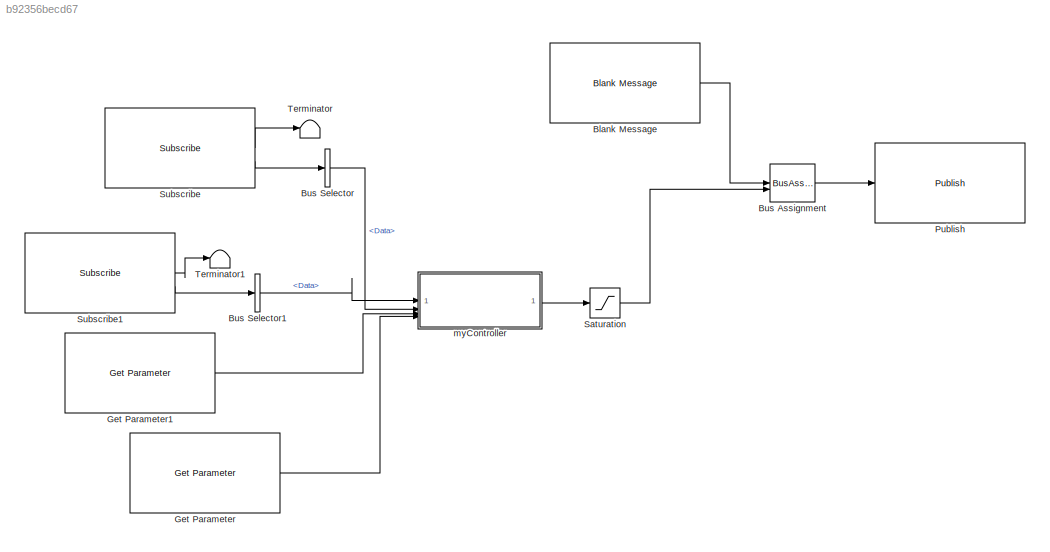
MODEL slx_b92356becd67
KIND model
CONFIG AbsTol = auto
CONFIG EnableMultiTasking = off
CONFIG FixedStep = 0.05
CONFIG MaxStep = auto
CONFIG MinStep = auto
CONFIG RelTol = 1e-3
CONFIG SampleTimeConstraint = Unconstrained
CONFIG SolverName = FixedStepAuto
CONFIG StartTime = 0.0
CONFIG StopTime = inf
BLOCK [Reference] Blank Message  REF=robotlib/Blank Message
  SourceBlock = robotlib/Blank Message
  SourceType = ROS Blank Message
BLOCK [BusAssignment] Bus Assignment
  AssignedSignals = Data
BLOCK [BusSelector] Bus Selector
  OutputSignals = Data
BLOCK [BusSelector] Bus Selector1
  OutputSignals = Data
BLOCK [Reference] Get Parameter  REF=robotlib/Get Parameter
  SourceBlock = robotlib/Get Parameter
  SourceType = ROS Get Parameter
BLOCK [Reference] Get Parameter1  REF=robotlib/Get Parameter
  SourceBlock = robotlib/Get Parameter
  SourceType = ROS Get Parameter
BLOCK [Reference] Publish  REF=robotlib/Publish
  SourceBlock = robotlib/Publish
  SourceType = ROS Publish
BLOCK [Saturate] Saturation
  LowerLimit = -3.0
  UpperLimit = 1.5
BLOCK [Reference] Subscribe  REF=robotlib/Subscribe
  SourceBlock = robotlib/Subscribe
  SourceType = ROS Subscribe
BLOCK [Reference] Subscribe1  REF=robotlib/Subscribe
  SourceBlock = robotlib/Subscribe
  SourceType = ROS Subscribe
BLOCK [Terminator] Terminator
BLOCK [Terminator] Terminator1
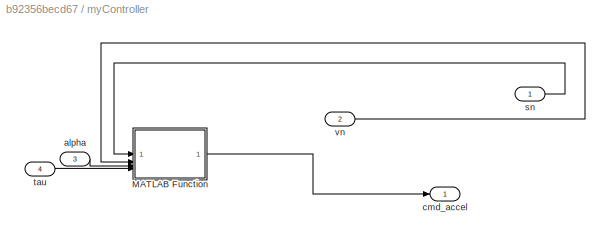
BLOCK [SubSystem] myController
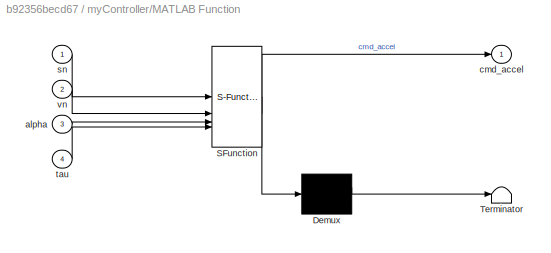
BLOCK [SubSystem] myController/MATLAB Function
  ErrorFcn = Stateflow.Translate.translate
  LibrarySourceBlock = simulink/User-Defined\nFunctions/MATLAB Function
  PermitHierarchicalResolution = ExplicitOnly
  SFBlockType = MATLAB Function
  TreatAsAtomicUnit = on
BLOCK [Demux] myController/MATLAB Function/ Demux 
  Outputs = 1
BLOCK [S-Function] myController/MATLAB Function/ SFunction 
  EnableBusSupport = off
  FunctionName = sf_sfun
  PortCounts = [4 2]
  SFcnIsStateOwnerBlock = off
  SFunctionDeploymentMode = off
  Tag = Stateflow S-Function 2
BLOCK [Terminator] myController/MATLAB Function/ Terminator 
BLOCK [Inport] myController/MATLAB Function/alpha
  Port = 3
BLOCK [Outport] myController/MATLAB Function/cmd_accel
BLOCK [Inport] myController/MATLAB Function/sn
BLOCK [Inport] myController/MATLAB Function/tau
  Port = 4
BLOCK [Inport] myController/MATLAB Function/vn
  Port = 2
BLOCK [Inport] myController/alpha
  Port = 3
BLOCK [Outport] myController/cmd_accel
BLOCK [Inport] myController/sn
BLOCK [Inport] myController/tau
  Port = 4
BLOCK [Inport] myController/vn
  Port = 2
LINE Blank Message:1 -> Bus Assignment:1
LINE Bus Assignment:1 -> Publish:1
LINE Bus Selector1:1 -> myController:1
LINE Bus Selector:1 -> myController:2
LINE Get Parameter1:1 -> myController:3
LINE Get Parameter:1 -> myController:4
LINE Saturation:1 -> Bus Assignment:2
LINE Subscribe1:1 -> Terminator1:1
LINE Subscribe1:2 -> Bus Selector1:1
LINE Subscribe:1 -> Terminator:1
LINE Subscribe:2 -> Bus Selector:1
LINE myController/MATLAB Function:1 -> myController/cmd_accel:1
LINE myController/alpha:1 -> myController/MATLAB Function:3
LINE myController/sn:1 -> myController/MATLAB Function:1
LINE myController/tau:1 -> myController/MATLAB Function:4
LINE myController/vn:1 -> myController/MATLAB Function:2
LINE myController:1 -> Saturation:1
CHART myController/MATLAB Function states=1 transitions=1
  STATE_LABEL 'eML_blk_kernel()'
  STATE_LABEL 'SCRIPT:\nfunction cmd_accel = fcn(sn,vn,alpha,tau)\n\ncmd_accel = alpha * (sn - tau*vn);\n'
CHART  states=0 transitions=0
